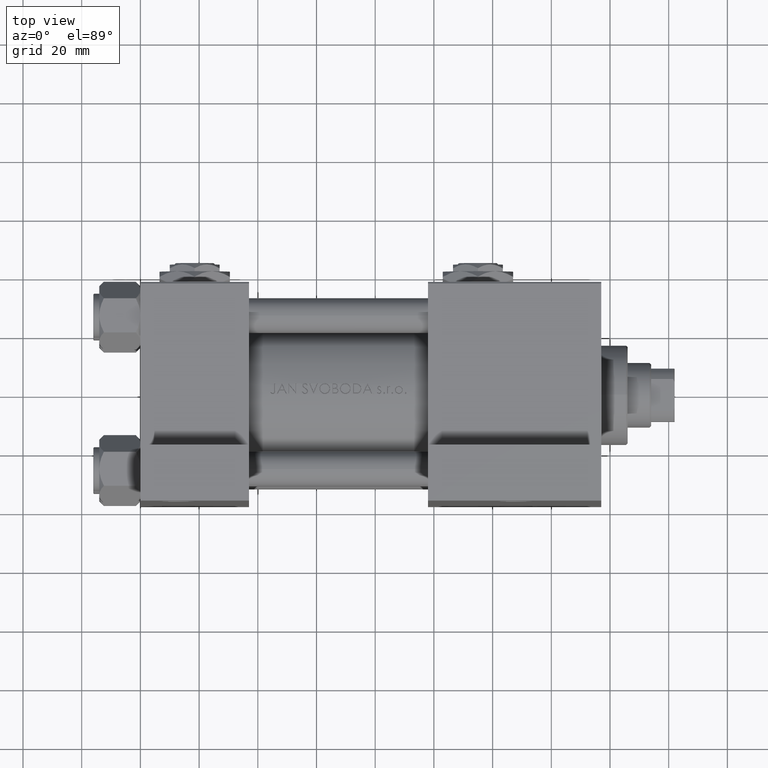
[diagram: clean part render]
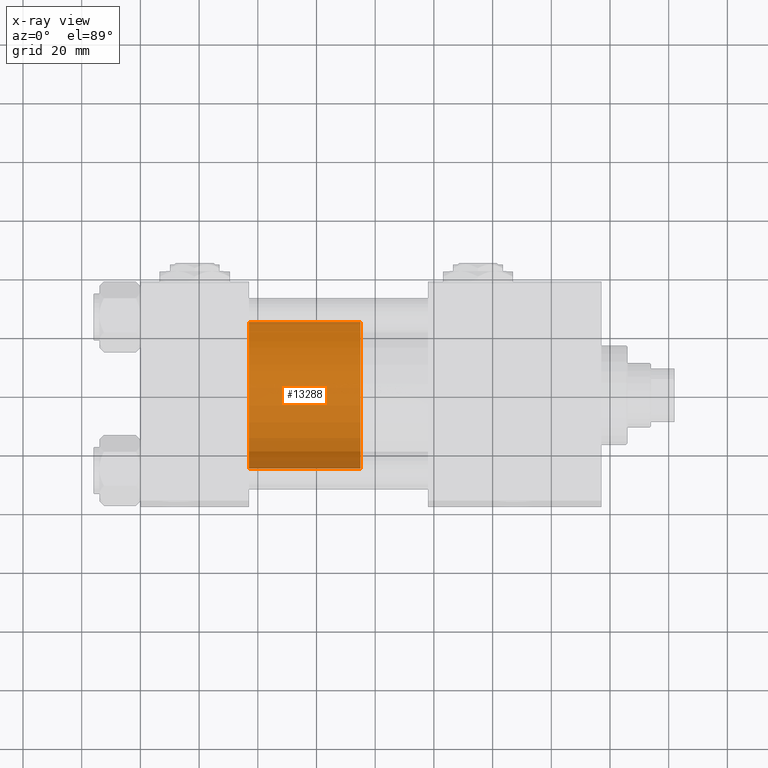
[diagram: x-ray — body ghosted, one internal face saturated and labeled with its STEP entity id]
A machine part, top view, then the same camera in x-ray: the body is ghosted and one INTERNAL B-rep face — a face not visible from any outside direction — is saturated and labeled: STEP entity #13288.
In plain terms, the highlighted cylindrical surface (partial cylindrical patch) has radius 25 mm, axis along (-1, 0, 0).
Its self-contained STEP definition (entity closure, byte-faithful):
#28 = CARTESIAN_POINT ( 'NONE',  ( -25.00000000000000000, 0.000000000000000000, 0.000000000000000000 ) ) ;
#4241 = CYLINDRICAL_SURFACE ( 'NONE', #24063, 25.00000000000000000 ) ;
#4343 = ORIENTED_EDGE ( 'NONE', *, *, #15675, .F. ) ;
#5055 = AXIS2_PLACEMENT_3D ( 'NONE', #13450, #5741, #43437 ) ;
#5175 = EDGE_LOOP ( 'NONE', ( #19871, #43753, #15258, #4343 ) ) ;
#5573 = CARTESIAN_POINT ( 'NONE',  ( -25.00000000000000000, 0.000000000000000000, 38.00000000000000000 ) ) ;
#5741 = DIRECTION ( 'NONE',  ( 0.000000000000000000, 0.000000000000000000, 1.000000000000000000 ) ) ;
#7631 = CARTESIAN_POINT ( 'NONE',  ( 25.00000000000000000, 3.061616997868383043E-15, 38.00000000000000000 ) ) ;
#7740 = CARTESIAN_POINT ( 'NONE',  ( 0.000000000000000000, 0.000000000000000000, 38.00000000000000000 ) ) ;
#10298 = CARTESIAN_POINT ( 'NONE',  ( -25.00000000000000000, 0.000000000000000000, 38.00000000000000000 ) ) ;
#11568 = CARTESIAN_POINT ( 'NONE',  ( 25.00000000000000000, 3.061616997868383043E-15, 38.00000000000000000 ) ) ;
#13288 = ADVANCED_FACE ( 'NONE', ( #26570 ), #4241, .T. ) ;
#13450 = CARTESIAN_POINT ( 'NONE',  ( 0.000000000000000000, 0.000000000000000000, 38.00000000000000000 ) ) ;
#15258 = ORIENTED_EDGE ( 'NONE', *, *, #44272, .T. ) ;
#15675 = EDGE_CURVE ( 'NONE', #23676, #30564, #24412, .T. ) ;
#15779 = CARTESIAN_POINT ( 'NONE',  ( 0.000000000000000000, 0.000000000000000000, 0.000000000000000000 ) ) ;
#18520 = CIRCLE ( 'NONE', #5055, 25.00000000000000000 ) ;
#19799 = CARTESIAN_POINT ( 'NONE',  ( 25.00000000000000000, 3.061616997868383043E-15, 0.000000000000000000 ) ) ;
#19871 = ORIENTED_EDGE ( 'NONE', *, *, #40968, .F. ) ;
#23086 = DIRECTION ( 'NONE',  ( -1.000000000000000000, 0.000000000000000000, 0.000000000000000000 ) ) ;
#23676 = VERTEX_POINT ( 'NONE', #10298 ) ;
#24063 = AXIS2_PLACEMENT_3D ( 'NONE', #7740, #34505, #23086 ) ;
#24412 = LINE ( 'NONE', #5573, #44746 ) ;
#24568 = VERTEX_POINT ( 'NONE', #11568 ) ;
#26213 = DIRECTION ( 'NONE',  ( -0.000000000000000000, -0.000000000000000000, -1.000000000000000000 ) ) ;
#26570 = FACE_OUTER_BOUND ( 'NONE', #5175, .T. ) ;
#27151 = DIRECTION ( 'NONE',  ( -0.000000000000000000, -0.000000000000000000, -1.000000000000000000 ) ) ;
#27170 = DIRECTION ( 'NONE',  ( 1.000000000000000000, 0.000000000000000000, 0.000000000000000000 ) ) ;
#29638 = VECTOR ( 'NONE', #26213, 1000.000000000000000 ) ;
#30564 = VERTEX_POINT ( 'NONE', #28 ) ;
#30896 = DIRECTION ( 'NONE',  ( 0.000000000000000000, 0.000000000000000000, 1.000000000000000000 ) ) ;
#34505 = DIRECTION ( 'NONE',  ( -0.000000000000000000, -0.000000000000000000, -1.000000000000000000 ) ) ;
#35360 = VERTEX_POINT ( 'NONE', #19799 ) ;
#37828 = EDGE_CURVE ( 'NONE', #24568, #35360, #41355, .T. ) ;
#39226 = CIRCLE ( 'NONE', #45553, 25.00000000000000000 ) ;
#40968 = EDGE_CURVE ( 'NONE', #24568, #23676, #18520, .T. ) ;
#41355 = LINE ( 'NONE', #7631, #29638 ) ;
#43437 = DIRECTION ( 'NONE',  ( 1.000000000000000000, 0.000000000000000000, 0.000000000000000000 ) ) ;
#43753 = ORIENTED_EDGE ( 'NONE', *, *, #37828, .T. ) ;
#44272 = EDGE_CURVE ( 'NONE', #35360, #30564, #39226, .T. ) ;
#44746 = VECTOR ( 'NONE', #27151, 1000.000000000000000 ) ;
#45553 = AXIS2_PLACEMENT_3D ( 'NONE', #15779, #30896, #27170 ) ;